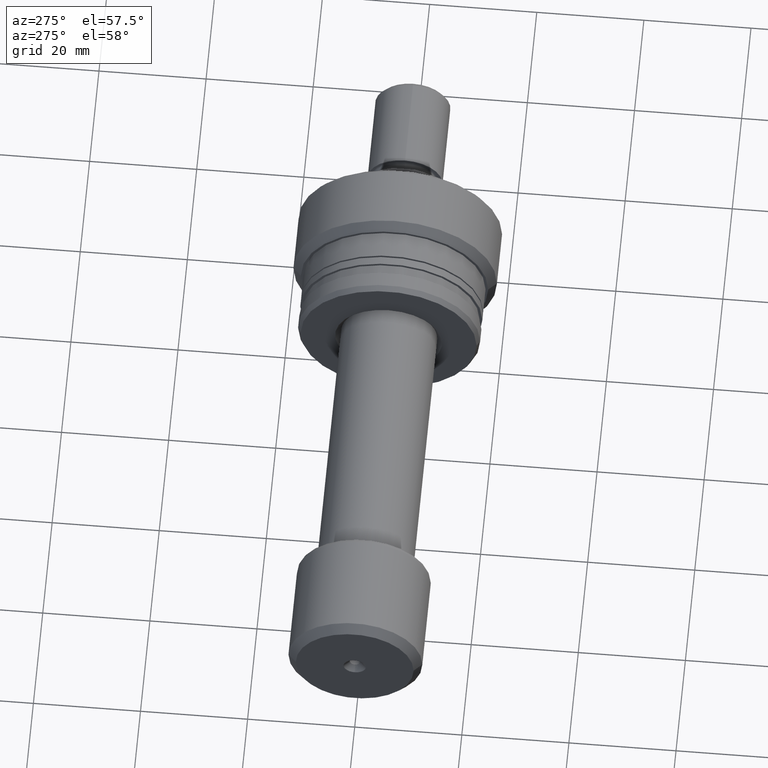
[diagram: clean part render]
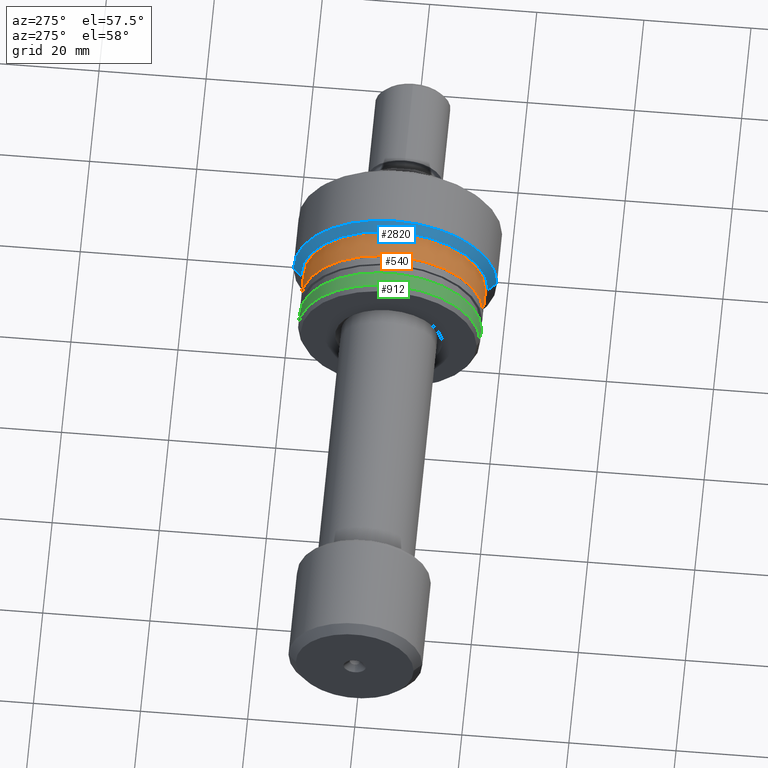
[diagram: same view with three faces highlighted in distinct colors, each labeled with its STEP entity id]
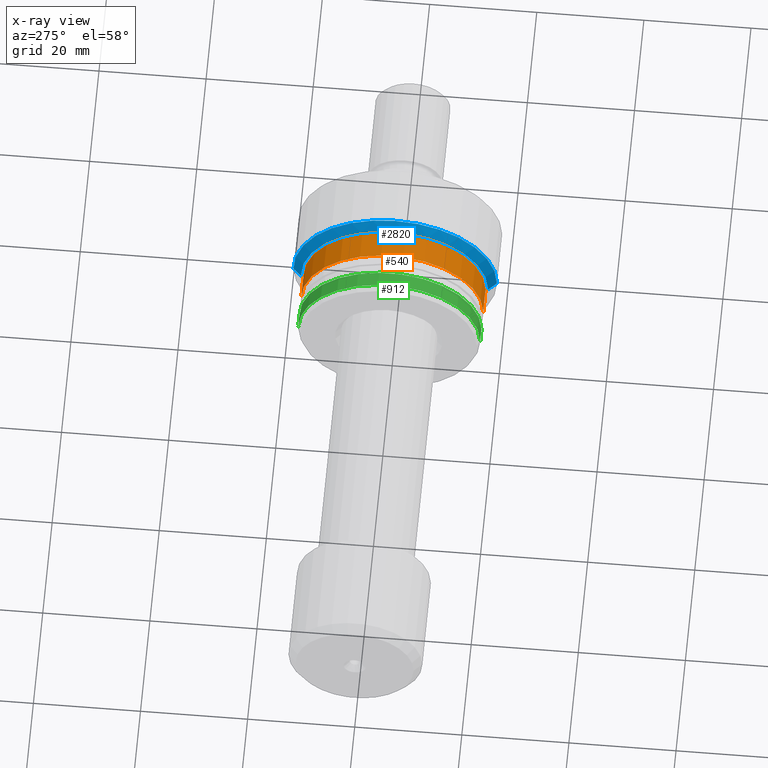
[diagram: x-ray of the same camera — body ghosted, the three highlighted faces saturated]
A machine part, auxiliary view with three faces highlighted in distinct colors.
The next image is the same camera in x-ray (body ghosted, the three faces saturated) — at least one of them is partly hidden behind the body in this view.
Their STEP definitions:

[orange] entity #540 — the highlighted cylindrical surface (partial cylindrical patch) has radius 17 mm, axis along (-1, 0, 0).
#25 = ORIENTED_EDGE ( 'NONE', *, *, #1147, .T. ) ;
#151 = DIRECTION ( 'NONE',  ( -1.020425574104004985E-15, -1.000000000000000000, 0.000000000000000000 ) ) ;
#285 = CARTESIAN_POINT ( 'NONE',  ( -18.99999999999996447, 16.99999999999998224, 2.081899558550499885E-15 ) ) ;
#401 = DIRECTION ( 'NONE',  ( -1.000000000000000000, 9.810081908519753690E-16, -0.000000000000000000 ) ) ;
#456 = CIRCLE ( 'NONE', #1673, 16.99999999999999289 ) ;
#540 = ADVANCED_FACE ( 'NONE', ( #1683 ), #1935, .T. ) ;
#617 = EDGE_CURVE ( 'NONE', #1600, #1340, #456, .T. ) ;
#629 = DIRECTION ( 'NONE',  ( -1.020425574104004788E-15, -1.000000000000000000, 0.000000000000000000 ) ) ;
#651 = DIRECTION ( 'NONE',  ( -1.000000000000000000, 9.810081908519753690E-16, -0.000000000000000000 ) ) ;
#931 = CIRCLE ( 'NONE', #1912, 16.99999999999998579 ) ;
#1041 = DIRECTION ( 'NONE',  ( -1.000000000000000000, 9.810081908519753690E-16, -0.000000000000000000 ) ) ;
#1147 = EDGE_CURVE ( 'NONE', #2564, #2768, #931, .T. ) ;
#1212 = VECTOR ( 'NONE', #651, 1000.000000000000000 ) ;
#1215 = VECTOR ( 'NONE', #401, 1000.000000000000000 ) ;
#1272 = DIRECTION ( 'NONE',  ( -1.020425574104004591E-15, -1.000000000000000000, 0.000000000000000000 ) ) ;
#1340 = VERTEX_POINT ( 'NONE', #285 ) ;
#1469 = CARTESIAN_POINT ( 'NONE',  ( -19.00000000000000000, -17.00000000000000355, 0.000000000000000000 ) ) ;
#1510 = CARTESIAN_POINT ( 'NONE',  ( -13.99999999999999822, -17.00000000000000355, 0.000000000000000000 ) ) ;
#1525 = ORIENTED_EDGE ( 'NONE', *, *, #2604, .T. ) ;
#1548 = LINE ( 'NONE', #1974, #1212 ) ;
#1600 = VERTEX_POINT ( 'NONE', #1469 ) ;
#1620 = EDGE_CURVE ( 'NONE', #2564, #1600, #1548, .T. ) ;
#1639 = EDGE_LOOP ( 'NONE', ( #25, #1525, #1960, #1659 ) ) ;
#1659 = ORIENTED_EDGE ( 'NONE', *, *, #1620, .F. ) ;
#1673 = AXIS2_PLACEMENT_3D ( 'NONE', #2623, #1041, #1272 ) ;
#1683 = FACE_OUTER_BOUND ( 'NONE', #1639, .T. ) ;
#1743 = CARTESIAN_POINT ( 'NONE',  ( -30.28002276692730632, 16.99999999999998934, 2.081899558550499491E-15 ) ) ;
#1912 = AXIS2_PLACEMENT_3D ( 'NONE', #2580, #2169, #151 ) ;
#1935 = CYLINDRICAL_SURFACE ( 'NONE', #2568, 16.99999999999998934 ) ;
#1960 = ORIENTED_EDGE ( 'NONE', *, *, #617, .F. ) ;
#1962 = LINE ( 'NONE', #1743, #1215 ) ;
#1974 = CARTESIAN_POINT ( 'NONE',  ( -30.28002276692734185, -16.99999999999998934, 0.000000000000000000 ) ) ;
#2169 = DIRECTION ( 'NONE',  ( -1.000000000000000000, 9.810081908519753690E-16, -0.000000000000000000 ) ) ;
#2433 = CARTESIAN_POINT ( 'NONE',  ( -13.99999999999996447, 16.99999999999997158, 2.081899558550499096E-15 ) ) ;
#2564 = VERTEX_POINT ( 'NONE', #1510 ) ;
#2568 = AXIS2_PLACEMENT_3D ( 'NONE', #2582, #2796, #629 ) ;
#2580 = CARTESIAN_POINT ( 'NONE',  ( -13.99999999999998046, -1.597083568161236364E-14, 0.000000000000000000 ) ) ;
#2582 = CARTESIAN_POINT ( 'NONE',  ( -30.28002276692732408, 0.000000000000000000, 0.000000000000000000 ) ) ;
#2604 = EDGE_CURVE ( 'NONE', #2768, #1340, #1962, .T. ) ;
#2623 = CARTESIAN_POINT ( 'NONE',  ( -18.99999999999998224, -1.106579472735248521E-14, 0.000000000000000000 ) ) ;
#2768 = VERTEX_POINT ( 'NONE', #2433 ) ;
#2796 = DIRECTION ( 'NONE',  ( -1.000000000000000000, 9.810081908519753690E-16, -0.000000000000000000 ) ) ;

[blue] entity #2820 — the highlighted conical surface has half-angle 45 deg.
#53 = EDGE_CURVE ( 'NONE', #328, #2386, #266, .T. ) ;
#147 = DIRECTION ( 'NONE',  ( -1.004313591354994318E-15, -1.000000000000000000, 0.000000000000000000 ) ) ;
#185 = AXIS2_PLACEMENT_3D ( 'NONE', #504, #549, #2563 ) ;
#266 = CIRCLE ( 'NONE', #2095, 18.99999999999998579 ) ;
#313 = ORIENTED_EDGE ( 'NONE', *, *, #53, .T. ) ;
#328 = VERTEX_POINT ( 'NONE', #777 ) ;
#492 = DIRECTION ( 'NONE',  ( 0.7071067811865477948, -0.7071067811865473507, 8.659560562354924230E-17 ) ) ;
#504 = CARTESIAN_POINT ( 'NONE',  ( -13.99999999999998046, -1.597083568161236364E-14, 0.000000000000000000 ) ) ;
#517 = CONICAL_SURFACE ( 'NONE', #185, 17.50000000000067502, 0.7853981633974471688 ) ;
#521 = LINE ( 'NONE', #2508, #1451 ) ;
#531 = DIRECTION ( 'NONE',  ( -1.000000000000000000, 9.810081908519753690E-16, -0.000000000000000000 ) ) ;
#549 = DIRECTION ( 'NONE',  ( 1.000000000000000000, -9.810081908519753690E-16, 0.000000000000000000 ) ) ;
#689 = ORIENTED_EDGE ( 'NONE', *, *, #2893, .F. ) ;
#777 = CARTESIAN_POINT ( 'NONE',  ( -12.50000000000068567, -19.00000000000000711, 2.326828918379969393E-15 ) ) ;
#987 = DIRECTION ( 'NONE',  ( -1.000000000000000000, 9.810081908519753690E-16, -0.000000000000000000 ) ) ;
#1049 = CARTESIAN_POINT ( 'NONE',  ( -13.99999999999996447, 17.50000000000065725, 0.000000000000000000 ) ) ;
#1150 = VERTEX_POINT ( 'NONE', #1049 ) ;
#1233 = VERTEX_POINT ( 'NONE', #1578 ) ;
#1251 = CARTESIAN_POINT ( 'NONE',  ( -13.99999999999998046, -1.597083568161236364E-14, 0.000000000000000000 ) ) ;
#1314 = EDGE_CURVE ( 'NONE', #1233, #328, #2090, .T. ) ;
#1361 = ORIENTED_EDGE ( 'NONE', *, *, #1314, .T. ) ;
#1415 = FACE_OUTER_BOUND ( 'NONE', #2883, .T. ) ;
#1451 = VECTOR ( 'NONE', #2305, 1000.000000000000114 ) ;
#1578 = CARTESIAN_POINT ( 'NONE',  ( -13.99999999999999822, -17.50000000000069278, 2.234980408443960236E-15 ) ) ;
#1662 = CARTESIAN_POINT ( 'NONE',  ( -12.50000000000066613, -1.744234796788965300E-14, 0.000000000000000000 ) ) ;
#1914 = ORIENTED_EDGE ( 'NONE', *, *, #2519, .F. ) ;
#1922 = AXIS2_PLACEMENT_3D ( 'NONE', #1251, #987, #2154 ) ;
#2084 = CARTESIAN_POINT ( 'NONE',  ( -12.50000000000064837, 18.99999999999996447, 0.000000000000000000 ) ) ;
#2090 = LINE ( 'NONE', #2304, #2249 ) ;
#2095 = AXIS2_PLACEMENT_3D ( 'NONE', #1662, #531, #147 ) ;
#2154 = DIRECTION ( 'NONE',  ( -9.912705577009943938E-16, -1.000000000000000000, 0.000000000000000000 ) ) ;
#2249 = VECTOR ( 'NONE', #492, 999.9999999999998863 ) ;
#2304 = CARTESIAN_POINT ( 'NONE',  ( -13.99999999999999822, -17.50000000000069278, 2.143131898507950684E-15 ) ) ;
#2305 = DIRECTION ( 'NONE',  ( 0.7071067811865489050, 0.7071067811865460184, 0.000000000000000000 ) ) ;
#2386 = VERTEX_POINT ( 'NONE', #2084 ) ;
#2508 = CARTESIAN_POINT ( 'NONE',  ( -13.99999999999996447, 17.50000000000065725, 0.000000000000000000 ) ) ;
#2519 = EDGE_CURVE ( 'NONE', #1233, #1150, #2622, .T. ) ;
#2563 = DIRECTION ( 'NONE',  ( 9.912705577009943938E-16, 1.000000000000000000, 0.000000000000000000 ) ) ;
#2622 = CIRCLE ( 'NONE', #1922, 17.50000000000067502 ) ;
#2820 = ADVANCED_FACE ( 'NONE', ( #1415 ), #517, .T. ) ;
#2883 = EDGE_LOOP ( 'NONE', ( #1914, #1361, #313, #689 ) ) ;
#2893 = EDGE_CURVE ( 'NONE', #1150, #2386, #521, .T. ) ;

[green] entity #912 — the highlighted cylindrical surface (partial cylindrical patch) has radius 17 mm, axis along (-1, 0, 0).
#253 = EDGE_CURVE ( 'NONE', #1359, #1818, #1580, .T. ) ;
#301 = DIRECTION ( 'NONE',  ( -1.020425574104004394E-15, -1.000000000000000000, 0.000000000000000000 ) ) ;
#408 = DIRECTION ( 'NONE',  ( -1.000000000000000000, 9.810081908519753690E-16, -0.000000000000000000 ) ) ;
#494 = ORIENTED_EDGE ( 'NONE', *, *, #2275, .T. ) ;
#497 = LINE ( 'NONE', #1392, #2903 ) ;
#528 = DIRECTION ( 'NONE',  ( -1.020425574104004196E-15, -1.000000000000000000, 0.000000000000000000 ) ) ;
#597 = AXIS2_PLACEMENT_3D ( 'NONE', #2082, #2526, #301 ) ;
#633 = DIRECTION ( 'NONE',  ( -1.000000000000000000, 9.810081908519753690E-16, -0.000000000000000000 ) ) ;
#646 = CARTESIAN_POINT ( 'NONE',  ( -30.28002276692730632, 16.99999999999999645, 2.081899558550499885E-15 ) ) ;
#715 = DIRECTION ( 'NONE',  ( -1.000000000000000000, 9.810081908519753690E-16, -0.000000000000000000 ) ) ;
#784 = VERTEX_POINT ( 'NONE', #2498 ) ;
#881 = AXIS2_PLACEMENT_3D ( 'NONE', #1587, #633, #2056 ) ;
#912 = ADVANCED_FACE ( 'NONE', ( #2051 ), #2511, .T. ) ;
#1116 = AXIS2_PLACEMENT_3D ( 'NONE', #2501, #715, #528 ) ;
#1158 = CARTESIAN_POINT ( 'NONE',  ( -22.80878161770234414, 16.99999999999998579, 2.081899558550499885E-15 ) ) ;
#1194 = ORIENTED_EDGE ( 'NONE', *, *, #2408, .F. ) ;
#1283 = VERTEX_POINT ( 'NONE', #2690 ) ;
#1359 = VERTEX_POINT ( 'NONE', #1832 ) ;
#1392 = CARTESIAN_POINT ( 'NONE',  ( -30.28002276692734185, -16.99999999999999645, 0.000000000000000000 ) ) ;
#1580 = CIRCLE ( 'NONE', #881, 16.99999999999999289 ) ;
#1587 = CARTESIAN_POINT ( 'NONE',  ( -22.80878161770236190, -7.329348763220012769E-15, 0.000000000000000000 ) ) ;
#1594 = ORIENTED_EDGE ( 'NONE', *, *, #1892, .F. ) ;
#1619 = EDGE_LOOP ( 'NONE', ( #2077, #494, #1594, #1194 ) ) ;
#1759 = LINE ( 'NONE', #646, #2714 ) ;
#1818 = VERTEX_POINT ( 'NONE', #1158 ) ;
#1832 = CARTESIAN_POINT ( 'NONE',  ( -22.80878161770237966, -17.00000000000000000, 0.000000000000000000 ) ) ;
#1892 = EDGE_CURVE ( 'NONE', #1283, #784, #2013, .T. ) ;
#2013 = CIRCLE ( 'NONE', #1116, 17.00000000000000000 ) ;
#2051 = FACE_OUTER_BOUND ( 'NONE', #1619, .T. ) ;
#2056 = DIRECTION ( 'NONE',  ( -1.020425574104004591E-15, -1.000000000000000000, 0.000000000000000000 ) ) ;
#2077 = ORIENTED_EDGE ( 'NONE', *, *, #253, .T. ) ;
#2082 = CARTESIAN_POINT ( 'NONE',  ( -30.28002276692732408, 0.000000000000000000, 0.000000000000000000 ) ) ;
#2275 = EDGE_CURVE ( 'NONE', #1818, #784, #1759, .T. ) ;
#2296 = DIRECTION ( 'NONE',  ( -1.000000000000000000, 9.810081908519753690E-16, -0.000000000000000000 ) ) ;
#2408 = EDGE_CURVE ( 'NONE', #1359, #1283, #497, .T. ) ;
#2498 = CARTESIAN_POINT ( 'NONE',  ( -25.50000000000014566, 16.99999999999999289, 0.000000000000000000 ) ) ;
#2501 = CARTESIAN_POINT ( 'NONE',  ( -25.50000000000015987, -4.689241486814468610E-15, 0.000000000000000000 ) ) ;
#2511 = CYLINDRICAL_SURFACE ( 'NONE', #597, 16.99999999999999645 ) ;
#2526 = DIRECTION ( 'NONE',  ( -1.000000000000000000, 9.810081908519753690E-16, -0.000000000000000000 ) ) ;
#2690 = CARTESIAN_POINT ( 'NONE',  ( -25.50000000000017764, -17.00000000000000355, 2.081899558550500674E-15 ) ) ;
#2714 = VECTOR ( 'NONE', #408, 1000.000000000000000 ) ;
#2903 = VECTOR ( 'NONE', #2296, 1000.000000000000000 ) ;